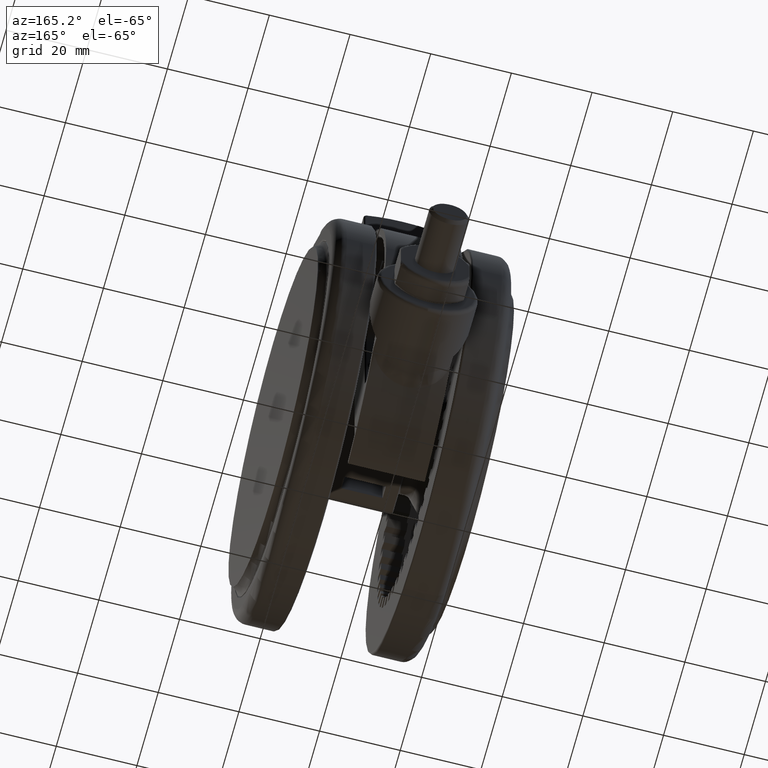
[diagram: clean part render]
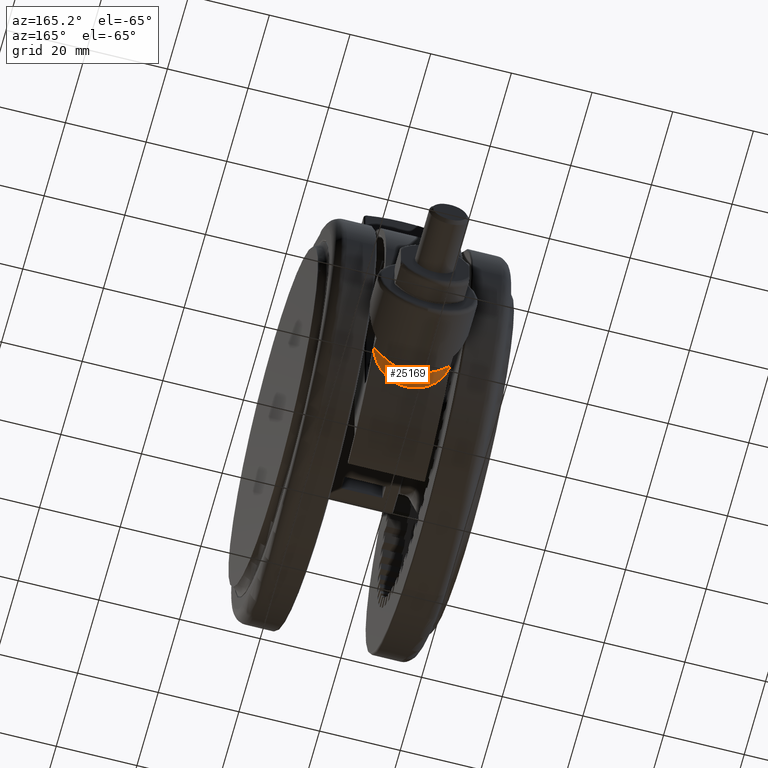
[diagram: same view with one face highlighted and labeled with its STEP entity id]
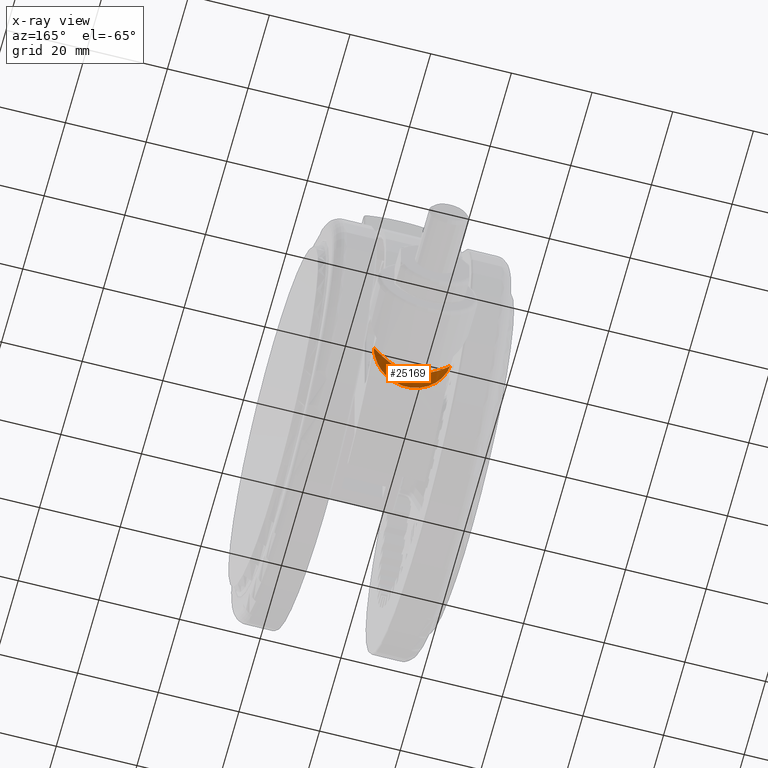
[diagram: x-ray of the same camera — body ghosted, the highlighted face saturated]
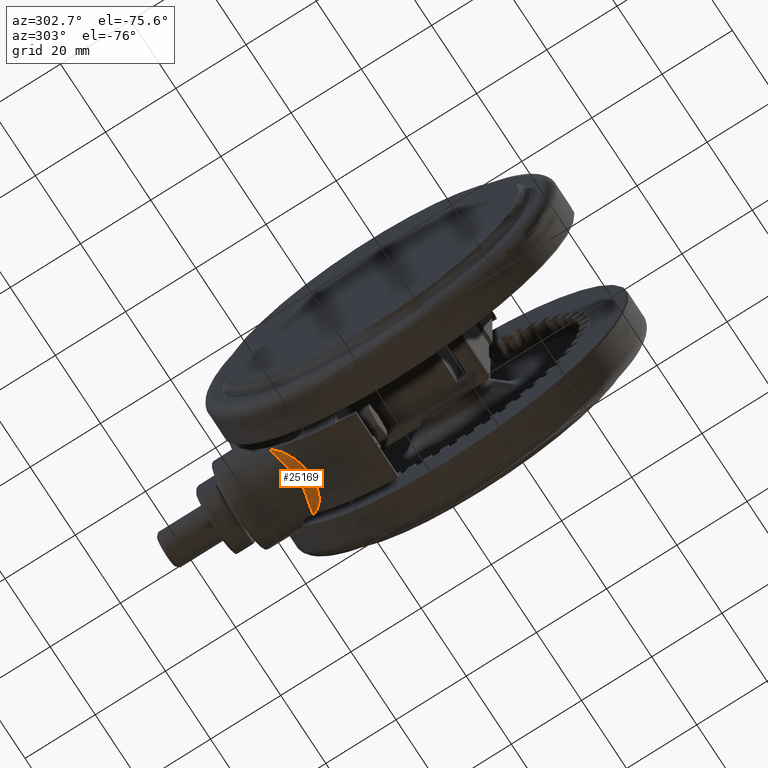
[diagram: same view with one face highlighted and labeled with its STEP entity id]
A machine part, auxiliary view. The second image highlights one B-rep face of the part: STEP entity #25169.
The next image is the same camera in x-ray: the body ghosted, the highlighted face saturated — about 0% of this face is hidden behind the body in this view.
A second angle (auxiliary view) of the same face is appended — the face is thin or edge-on in the first view.
In plain terms, the highlighted face is a freeform B-spline surface patch.
Its self-contained STEP definition (entity closure, byte-faithful):
#386 = CARTESIAN_POINT ( 'NONE',  ( -34.25130445588094100, -36.42593799122978000, -32.79308796653023700 ) ) ;
#545 = CARTESIAN_POINT ( 'NONE',  ( -36.36986337231447700, -34.31289385851399500, -30.28043021496837600 ) ) ;
#701 = CARTESIAN_POINT ( 'NONE',  ( -37.71843996565846900, -32.82255396730249000, -23.70754885830939800 ) ) ;
#1665 = CARTESIAN_POINT ( 'NONE',  ( -37.43618242095349300, -33.14478191162736900, -27.26398927128429500 ) ) ;
#1824 = CARTESIAN_POINT ( 'NONE',  ( -32.12403840463595400, -38.31509045503451500, -33.79999999999995500 ) ) ;
#1994 = CARTESIAN_POINT ( 'NONE',  ( -36.46856530793935700, -34.25636351355230100, -25.32458838649993600 ) ) ;
#2163 = CARTESIAN_POINT ( 'NONE',  ( -33.56664285895293900, -37.91273334638750500, -32.39834640829888500 ) ) ;
#2169 = CARTESIAN_POINT ( 'NONE',  ( -32.92166222278758900, -37.64634876964486000, -33.59697433640569400 ) ) ;
#2317 = CARTESIAN_POINT ( 'NONE',  ( -36.50043599079794600, -36.09292643029281300, -23.43755230665491500 ) ) ;
#2540 = B_SPLINE_CURVE_WITH_KNOTS ( 'NONE', 3,
 ( #29618, #44647, #10779, #37221, #14586, #41041, #18397, #44802, #22205, #48590, #25968, #3363, #29786, #7151, #33565, #10947, #37384, #14740, #41206, #18556, #44961, #22377, #48754, #26121, #3525, #29954, #7305, #33718, #11108, #37557, #14902, #41349, #18723, #45125, #22535, #48902, #26285, #3692, #30114, #7482, #33889, #11272, #37718, #15066 ),
 .UNSPECIFIED., .F., .F.,
 ( 4, 2, 2, 1, 1, 1, 1, 2, 2, 2, 1, 1, 1, 1, 2, 2, 1, 1, 1, 2, 2, 2, 2, 1, 1, 1, 1, 1, 2, 4 ),
 ( 0.0000000000000000000, 0.1249255703119594000, 0.1259015513300216200, 0.1268775323480838300, 0.1288294943842075400, 0.1327334184564546700, 0.1405412666009485700, 0.1561569628899360800, 0.1873883554679119100, 0.1893403175040351800, 0.1912922795401584300, 0.1951962036124047000, 0.2030040517568972300, 0.2186197480458824400, 0.2498511406238523000, 0.2518031026599752400, 0.2537550646960982600, 0.2576589887683443100, 0.2654668369128361200, 0.2810825332018202500, 0.3123139257797873900, 0.3747767109357216800, 0.3757526919537829700, 0.3767286729718442600, 0.3786806350079668900, 0.3825845590802121600, 0.3903924072247025900, 0.4060081035136832700, 0.4372394960916447000, 0.4997022812475671000 ),
 .UNSPECIFIED. ) ;
#2579 = EDGE_LOOP ( 'NONE', ( #26051, #10632, #22400 ) ) ;
#3216 = CARTESIAN_POINT ( 'NONE',  ( -36.15805373235433300, -36.41258714090651700, -27.20685049240347600 ) ) ;
#3292 = EDGE_CURVE ( 'NONE', #22430, #14341, #2540, .T. ) ;
#3363 = CARTESIAN_POINT ( 'NONE',  ( -34.59973128371528600, -37.45330876539701800, -17.67076234773432100 ) ) ;
#3376 = CARTESIAN_POINT ( 'NONE',  ( -35.43992505491073100, -36.96565723447674400, -29.33769371526798500 ) ) ;
#3400 = CARTESIAN_POINT ( 'NONE',  ( -37.16268891530106100, -33.45110870720961300, -20.26802367117061000 ) ) ;
#3525 = CARTESIAN_POINT ( 'NONE',  ( -35.48963411192150400, -36.92991092592433900, -19.37658311765648400 ) ) ;
#3546 = CARTESIAN_POINT ( 'NONE',  ( -34.66743719494450500, -37.42394761073261100, -30.81731373440900200 ) ) ;
#3563 = CARTESIAN_POINT ( 'NONE',  ( -35.00197835031620700, -35.70589945023508000, -16.45673910144243400 ) ) ;
#3692 = CARTESIAN_POINT ( 'NONE',  ( -36.27311717479182100, -36.30730546197649700, -21.92807313305850100 ) ) ;
#3711 = CARTESIAN_POINT ( 'NONE',  ( -32.12403840463594700, -38.31509045503450700, -33.79999999999995500 ) ) ;
#4172 = CARTESIAN_POINT ( 'NONE',  ( -34.31274652645726800, -36.36806705901759100, -32.74709739644021800 ) ) ;
#4339 = CARTESIAN_POINT ( 'NONE',  ( -36.89351901911390300, -33.74743635570672500, -29.10060216485619800 ) ) ;
#4500 = CARTESIAN_POINT ( 'NONE',  ( -37.67419706141804200, -32.87332735489306400, -23.03472540846654900 ) ) ;
#5258 = CARTESIAN_POINT ( 'NONE',  ( -36.50000001806535700, -36.09362725572350400, -24.29999658554314500 ) ) ;
#5433 = CARTESIAN_POINT ( 'NONE',  ( -37.68892080385659000, -32.85661925508011200, -25.52311673938108800 ) ) ;
#5601 = CARTESIAN_POINT ( 'NONE',  ( -33.31013225460080900, -37.29730577676193800, -32.69042207014332700 ) ) ;
#5765 = CARTESIAN_POINT ( 'NONE',  ( -36.50058598411994400, -34.22286650298862300, -23.28920437260285000 ) ) ;
#5922 = CARTESIAN_POINT ( 'NONE',  ( -34.62683780853768700, -37.44778576250880100, -30.89698155183882000 ) ) ;
#6083 = CARTESIAN_POINT ( 'NONE',  ( -36.05812889911138800, -36.50181562763256700, -20.89411594885230600 ) ) ;
#6836 = CARTESIAN_POINT ( 'NONE',  ( -36.50000022559466800, -36.09388832030650500, -25.12587872209097400 ) ) ;
#7009 = CARTESIAN_POINT ( 'NONE',  ( -36.03861309029507300, -36.51591747484231100, -27.67165940518934500 ) ) ;
#7068 = CARTESIAN_POINT ( 'NONE',  ( -37.35927654057920900, -33.23079222800549100, -21.04918661681228500 ) ) ;
#7151 = CARTESIAN_POINT ( 'NONE',  ( -34.86014351232513800, -37.31630280301596500, -18.11069175473656400 ) ) ;
#7168 = CARTESIAN_POINT ( 'NONE',  ( -35.42372825138241400, -36.97652211680768600, -29.37431014494724800 ) ) ;
#7185 = CARTESIAN_POINT ( 'NONE',  ( -36.70046858691684800, -33.95727959054358500, -19.03021689852306500 ) ) ;
#7305 = CARTESIAN_POINT ( 'NONE',  ( -35.61461062774503000, -36.84189128903796700, -19.67647250788782600 ) ) ;
#7323 = CARTESIAN_POINT ( 'NONE',  ( -34.39650944337410000, -37.55682584867588500, -31.24363407829115500 ) ) ;
#7345 = CARTESIAN_POINT ( 'NONE',  ( -34.63963226215736300, -36.05716634666075000, -16.12144361542922500 ) ) ;
#7482 = CARTESIAN_POINT ( 'NONE',  ( -36.37319197473188100, -36.21531074129342900, -22.50033337249992700 ) ) ;
#7973 = CARTESIAN_POINT ( 'NONE',  ( -34.99755747385133000, -35.71197130699533800, -32.16728140506390300 ) ) ;
#8124 = CARTESIAN_POINT ( 'NONE',  ( -37.10962394447583500, -33.50939683336971300, -28.47004904455606000 ) ) ;
#8272 = CARTESIAN_POINT ( 'NONE',  ( -37.63603152371256800, -32.91700591041863800, -22.66235478231617500 ) ) ;
#8608 = B_SPLINE_CURVE_WITH_KNOTS ( 'NONE', 3,
 ( #30429, #45444, #15383, #41847, #19199, #45601, #23013, #386, #26761, #4172, #30596, #7973, #34370, #11751, #38210, #15551, #42005, #19353, #45775, #23175, #545, #26923, #4339, #30761, #8124, #34541, #11915, #38371, #15717, #42165, #19509, #45932, #23345, #701, #27083, #4500, #30927, #8272, #34706, #12080, #38536, #15883, #42319, #7068, #22245, #48626, #26003, #3400, #29824, #7185, #33598, #10984, #37422, #14781, #41233, #18596, #44996, #22411, #48783, #26159, #3563, #29987, #7345, #33758, #11145, #37589, #14937, #41391, #18760, #45163 ),
 .UNSPECIFIED., .F., .F.,
 ( 4, 2, 1, 1, 1, 2, 2, 2, 2, 1, 1, 2, 2, 2, 2, 1, 1, 2, 2, 2, 2, 1, 2, 2, 2, 1, 1, 2, 2, 2, 2, 1, 1, 2, 2, 2, 2, 1, 1, 2, 2, 4 ),
 ( 0.0000000000000000000, 0.06250000000000023600, 0.09375000000000065200, 0.1093750000000008600, 0.1171875000000009600, 0.1210937500000014600, 0.1250000000000019400, 0.1874999999999977000, 0.2187499999999953600, 0.2343749999999939200, 0.2421874999999932600, 0.2460937499999930900, 0.2499999999999929500, 0.3124999999999885600, 0.3437499999999862300, 0.3593749999999849000, 0.3671874999999842300, 0.3710937499999842900, 0.3749999999999842900, 0.4999999999999832900, 0.5312499999999831200, 0.5468749999999831200, 0.5546874999999830100, 0.5624999999999829000, 0.5937499999999817900, 0.6093749999999814600, 0.6171874999999813500, 0.6210937499999812400, 0.6249999999999811300, 0.6874999999999821300, 0.7187499999999827900, 0.7343749999999832400, 0.7421874999999836800, 0.7460937499999839000, 0.7499999999999841200, 0.8124999999999886800, 0.8437499999999909000, 0.8593749999999920100, 0.8671874999999923400, 0.8710937499999926700, 0.8749999999999928900, 1.000000000000000000 ),
 .UNSPECIFIED. ) ;
#9065 = CARTESIAN_POINT ( 'NONE',  ( -33.66408607962479500, -36.98079492340351500, -33.24321432606851800 ) ) ;
#9236 = CARTESIAN_POINT ( 'NONE',  ( -37.72782762532069300, -32.81175130032340800, -23.09257323305550700 ) ) ;
#9395 = CARTESIAN_POINT ( 'NONE',  ( -34.32820012965621000, -36.36630205246963500, -31.37659994022887800 ) ) ;
#9556 = CARTESIAN_POINT ( 'NONE',  ( -35.92461712610769800, -34.81611768652255300, -20.39279422286490400 ) ) ;
#9740 = CARTESIAN_POINT ( 'NONE',  ( -35.27000021430969000, -37.08024586471056200, -29.72456952125632800 ) ) ;
#9895 = CARTESIAN_POINT ( 'NONE',  ( -35.09520465022619400, -37.19832824345706300, -18.47643764968922000 ) ) ;
#10056 = CARTESIAN_POINT ( 'NONE',  ( -32.12403840463594700, -38.31509045503450700, -33.79999999999995500 ) ) ;
#10632 = ORIENTED_EDGE ( 'NONE', *, *, #41609, .F. ) ;
#10779 = CARTESIAN_POINT ( 'NONE',  ( -33.51028970828846800, -37.93220448718817300, -16.12263061677519700 ) ) ;
#10796 = CARTESIAN_POINT ( 'NONE',  ( -35.89892968039090700, -36.62970362570057100, -28.12958128998823400 ) ) ;
#10947 = CARTESIAN_POINT ( 'NONE',  ( -34.87962305963709000, -37.30564295848562800, -18.14500274588189700 ) ) ;
#10957 = CARTESIAN_POINT ( 'NONE',  ( -35.36717482719479500, -37.01403410383044700, -29.50025706936827400 ) ) ;
#10984 = CARTESIAN_POINT ( 'NONE',  ( -36.42248523555787900, -34.25506623938138500, -18.45084457819068300 ) ) ;
#11108 = CARTESIAN_POINT ( 'NONE',  ( -35.80168147988528200, -36.70355044283289900, -20.17382168435242200 ) ) ;
#11132 = CARTESIAN_POINT ( 'NONE',  ( -34.09237753911946100, -37.68988539547421400, -31.67529203613121800 ) ) ;
#11145 = CARTESIAN_POINT ( 'NONE',  ( -34.42855383075186600, -36.25845492202547100, -15.94830099442340400 ) ) ;
#11272 = CARTESIAN_POINT ( 'NONE',  ( -36.47957591456979300, -36.11417289990463100, -23.46611478646570200 ) ) ;
#11751 = CARTESIAN_POINT ( 'NONE',  ( -35.58246277233998000, -35.12728478887276400, -31.48419502736400600 ) ) ;
#11915 = CARTESIAN_POINT ( 'NONE',  ( -37.23429283232786000, -33.37077632623414300, -28.04583883585288700 ) ) ;
#12080 = CARTESIAN_POINT ( 'NONE',  ( -37.58251479947082200, -32.97813730035134900, -22.22206409546963400 ) ) ;
#12457 = VERTEX_POINT ( 'NONE', #10056 ) ;
#12866 = CARTESIAN_POINT ( 'NONE',  ( -34.98648690088794700, -35.72284706792292000, -32.17832863730429700 ) ) ;
#13025 = CARTESIAN_POINT ( 'NONE',  ( -37.01941153230019000, -33.61160347066741100, -19.70481856507862200 ) ) ;
#13190 = CARTESIAN_POINT ( 'NONE',  ( -35.00522410131638700, -35.72389488592597900, -30.27522735907880500 ) ) ;
#13359 = CARTESIAN_POINT ( 'NONE',  ( -34.80540810995835700, -35.91864659482315900, -17.92145593502703700 ) ) ;
#13518 = CARTESIAN_POINT ( 'NONE',  ( -35.77125076591614300, -36.73149997768071300, -28.52743659507412800 ) ) ;
#13671 = CARTESIAN_POINT ( 'NONE',  ( -33.57425050388184900, -37.90511995949101700, -16.21052711192594100 ) ) ;
#14341 = VERTEX_POINT ( 'NONE', #5258 ) ;
#14586 = CARTESIAN_POINT ( 'NONE',  ( -34.12394766112302600, -37.67156191372762900, -16.96817061709058900 ) ) ;
#14602 = CARTESIAN_POINT ( 'NONE',  ( -35.88917128236350600, -36.63746066682394800, -28.15975867705981300 ) ) ;
#14740 = CARTESIAN_POINT ( 'NONE',  ( -34.94685685017782400, -37.26844631393579000, -18.26496723256317600 ) ) ;
#14758 = CARTESIAN_POINT ( 'NONE',  ( -35.11666137714098600, -37.17249885013258400, -30.02322095951419500 ) ) ;
#14781 = CARTESIAN_POINT ( 'NONE',  ( -36.22481259833247000, -34.46399058006397100, -18.08821197765285000 ) ) ;
#14902 = CARTESIAN_POINT ( 'NONE',  ( -36.06573623713463700, -36.49300108588585100, -21.00542363734206600 ) ) ;
#14919 = CARTESIAN_POINT ( 'NONE',  ( -34.03837811872038100, -37.71242924569535400, -31.74861788207863400 ) ) ;
#14937 = CARTESIAN_POINT ( 'NONE',  ( -34.36343508477920500, -36.32017561434445700, -15.89721210537177500 ) ) ;
#15066 = CARTESIAN_POINT ( 'NONE',  ( -36.50000001806535700, -36.09362725572350400, -24.29999658554314500 ) ) ;
#15383 = CARTESIAN_POINT ( 'NONE',  ( -32.91906115891493600, -37.63746394861338700, -33.55523827995644800 ) ) ;
#15551 = CARTESIAN_POINT ( 'NONE',  ( -35.88639470081733400, -34.81640338778236600, -31.06024271977734200 ) ) ;
#15717 = CARTESIAN_POINT ( 'NONE',  ( -37.27868678258919000, -33.32115974008785000, -27.87941658467040900 ) ) ;
#15883 = CARTESIAN_POINT ( 'NONE',  ( -37.45842529909910500, -33.11899733783679500, -21.50681829034573800 ) ) ;
#16682 = CARTESIAN_POINT ( 'NONE',  ( -35.85864279916599200, -34.84665416009491400, -31.12207594690954000 ) ) ;
#16846 = CARTESIAN_POINT ( 'NONE',  ( -35.60764669467684500, -35.10880213780451000, -17.06325723051129000 ) ) ;
#17019 = CARTESIAN_POINT ( 'NONE',  ( -35.57831253035872300, -35.16264297112702100, -29.06800148836890700 ) ) ;
#17189 = CARTESIAN_POINT ( 'NONE',  ( -33.31827743322988100, -37.29003772161654200, -15.91850003289538800 ) ) ;
#17346 = CARTESIAN_POINT ( 'NONE',  ( -36.14376018732229300, -36.42614527360846200, -27.29419569340585400 ) ) ;
#17519 = CARTESIAN_POINT ( 'NONE',  ( -32.12403840463594700, -38.31509045503450700, -14.79999999999995300 ) ) ;
#18251 = CARTESIAN_POINT ( 'NONE',  ( -36.23063194157887100, -36.34753037272069100, -26.88105403868257100 ) ) ;
#18397 = CARTESIAN_POINT ( 'NONE',  ( -34.14210928022161100, -37.66381044724838700, -16.99329829170409000 ) ) ;
#18414 = CARTESIAN_POINT ( 'NONE',  ( -35.85283871969480900, -36.66616226531722600, -28.27040462740729200 ) ) ;
#18556 = CARTESIAN_POINT ( 'NONE',  ( -35.21677137471778700, -37.11142425518021100, -18.77561857904351000 ) ) ;
#18572 = CARTESIAN_POINT ( 'NONE',  ( -34.84321218122181600, -37.32926548909281900, -30.51891792850196000 ) ) ;
#18596 = CARTESIAN_POINT ( 'NONE',  ( -36.14486403006539900, -34.54778351006460500, -17.95191337277101300 ) ) ;
#18723 = CARTESIAN_POINT ( 'NONE',  ( -36.23549645470843900, -36.34142888843267400, -21.74213810169099400 ) ) ;
#18743 = CARTESIAN_POINT ( 'NONE',  ( -33.85321846213000200, -37.78734117232765800, -31.99353385108453600 ) ) ;
#18760 = CARTESIAN_POINT ( 'NONE',  ( -32.93632475842446900, -37.63405544468293600, -15.00704004669549500 ) ) ;
#19199 = CARTESIAN_POINT ( 'NONE',  ( -33.73991292833539300, -36.90143508618617600, -33.14026829703659200 ) ) ;
#19353 = CARTESIAN_POINT ( 'NONE',  ( -36.04674763138156400, -34.65014434421257800, -30.81094728901973300 ) ) ;
#19509 = CARTESIAN_POINT ( 'NONE',  ( -37.58501714429105100, -32.97809629345243100, -26.68190859808843000 ) ) ;
#20487 = CARTESIAN_POINT ( 'NONE',  ( -36.58613579059674900, -34.08138319720666200, -29.84812007687396100 ) ) ;
#20644 = CARTESIAN_POINT ( 'NONE',  ( -33.67225760092103600, -36.97336288702951600, -15.36648014233135100 ) ) ;
#20808 = CARTESIAN_POINT ( 'NONE',  ( -36.03509612087079700, -34.70300020196339100, -27.74283297009095500 ) ) ;
#20977 = CARTESIAN_POINT ( 'NONE',  ( -32.12403840463597500, -38.31509045503447200, -14.79999999999995800 ) ) ;
#21147 = CARTESIAN_POINT ( 'NONE',  ( -36.38754879989574700, -36.20252279753516700, -26.02702512090588300 ) ) ;
#22052 = CARTESIAN_POINT ( 'NONE',  ( -36.22334612408018000, -36.35411392151534200, -26.91533111078388500 ) ) ;
#22205 = CARTESIAN_POINT ( 'NONE',  ( -34.21907164093681100, -37.63051104464103200, -17.10103321055018100 ) ) ;
#22221 = CARTESIAN_POINT ( 'NONE',  ( -35.74607930681553800, -36.74824502354478300, -28.57682106220142200 ) ) ;
#22245 = CARTESIAN_POINT ( 'NONE',  ( -37.33401568358108600, -33.25915570764770000, -20.94450826853733700 ) ) ;
#22377 = CARTESIAN_POINT ( 'NONE',  ( -35.45137718920580700, -36.95633427270735200, -19.28839850063547300 ) ) ;
#22395 = CARTESIAN_POINT ( 'NONE',  ( -34.82507840061735700, -37.33933783961024500, -30.55042673891864500 ) ) ;
#22400 = ORIENTED_EDGE ( 'NONE', *, *, #3292, .F. ) ;
#22411 = CARTESIAN_POINT ( 'NONE',  ( -35.86658510468876000, -34.83840316452166500, -17.49143007598861700 ) ) ;
#22430 = VERTEX_POINT ( 'NONE', #37388 ) ;
#22510 = EDGE_CURVE ( 'NONE', #12457, #22430, #8608, .T. ) ;
#22535 = CARTESIAN_POINT ( 'NONE',  ( -36.24000156349666200, -36.33735371592871400, -21.76378023264612000 ) ) ;
#22554 = CARTESIAN_POINT ( 'NONE',  ( -33.34418376838182500, -37.97134025071851200, -32.60638533128112500 ) ) ;
#23013 = CARTESIAN_POINT ( 'NONE',  ( -34.18871064049903900, -36.48476154389398800, -32.83915778883793000 ) ) ;
#23175 = CARTESIAN_POINT ( 'NONE',  ( -36.09326724600050800, -34.60168511526687500, -30.73579949498943300 ) ) ;
#23345 = CARTESIAN_POINT ( 'NONE',  ( -37.72742056007386700, -32.81221933876857100, -24.00770164411783400 ) ) ;
#24273 = CARTESIAN_POINT ( 'NONE',  ( -37.15574321912489400, -33.45885634714225200, -28.36081711690209800 ) ) ;
#24440 = CARTESIAN_POINT ( 'NONE',  ( -32.12403840463594700, -38.31509045503450700, -14.79999999999995300 ) ) ;
#24619 = CARTESIAN_POINT ( 'NONE',  ( -36.35010992757386800, -34.37936126329024900, -26.31268461614702800 ) ) ;
#24755 = CARTESIAN_POINT ( 'NONE',  ( -32.91740461730368800, -38.12528708408950700, -33.12154341256276500 ) ) ;
#24921 = CARTESIAN_POINT ( 'NONE',  ( -36.49977962614234200, -36.09398298328590500, -24.74066800862459200 ) ) ;
#25169 = ADVANCED_FACE ( 'NONE', ( #41819 ), #34946, .T. ) ;
#25826 = CARTESIAN_POINT ( 'NONE',  ( -36.19724345811074100, -36.37761353568409800, -27.03524008813427700 ) ) ;
#25968 = CARTESIAN_POINT ( 'NONE',  ( -34.41477385414428600, -37.54181864110322700, -17.38658844337106400 ) ) ;
#25984 = CARTESIAN_POINT ( 'NONE',  ( -35.54647348892726200, -36.89377144861592200, -29.09491575117739600 ) ) ;
#26003 = CARTESIAN_POINT ( 'NONE',  ( -37.30790920989749500, -33.28843755603158200, -20.83889342433607100 ) ) ;
#26051 = ORIENTED_EDGE ( 'NONE', *, *, #22510, .F. ) ;
#26121 = CARTESIAN_POINT ( 'NONE',  ( -35.47091343021338600, -36.94286382234802300, -19.33327133735178900 ) ) ;
#26137 = CARTESIAN_POINT ( 'NONE',  ( -34.76120495770850700, -37.37426196706833500, -30.66011556394994700 ) ) ;
#26159 = CARTESIAN_POINT ( 'NONE',  ( -35.15548171894425900, -35.55468087673803300, -16.61600918983972600 ) ) ;
#26285 = CARTESIAN_POINT ( 'NONE',  ( -36.25404827327366100, -36.32462915271486300, -21.83227477245025800 ) ) ;
#26297 = CARTESIAN_POINT ( 'NONE',  ( -32.49383438791685600, -38.22662119195278800, -33.48376455052056100 ) ) ;
#26761 = CARTESIAN_POINT ( 'NONE',  ( -34.29288990464157600, -36.38679042535216000, -32.76208389114204800 ) ) ;
#26923 = CARTESIAN_POINT ( 'NONE',  ( -36.59771754745315100, -34.06892858752121400, -29.82475463302112600 ) ) ;
#26990 = B_SPLINE_CURVE_WITH_KNOTS ( 'NONE', 3,
 ( #37079, #6836, #40884, #18251, #44656, #22052, #48429, #25826, #3216, #29636, #7009, #33420, #10796, #37234, #14602, #41062, #18414, #44822, #22221, #48606, #25984, #3376, #29804, #7168, #33585, #10957, #37403, #14758, #41219, #18572, #44980, #22395, #48767, #26137, #3546, #29972, #7323, #33734, #11132, #37571, #14919, #41365, #18743, #45143, #22554, #48920, #26297, #3711 ),
 .UNSPECIFIED., .F., .F.,
 ( 4, 2, 2, 1, 1, 1, 2, 2, 2, 1, 1, 1, 2, 2, 2, 1, 1, 1, 1, 2, 2, 1, 1, 1, 2, 2, 2, 1, 1, 1, 2, 4 ),
 ( 0.4997022812475671000, 0.6247767109356945300, 0.6267309988995718500, 0.6286852868634491600, 0.6325938627912035500, 0.6404110146467125700, 0.6560453183577308300, 0.6873139257797671300, 0.6892682137436443300, 0.6912225017075214200, 0.6951310776352749300, 0.7029482294907812800, 0.7185825332017937700, 0.7498511406238186300, 0.7518054285876952800, 0.7537597165515719200, 0.7576682924793247700, 0.7654854443348302300, 0.7811197480458407200, 0.8123883554678620300, 0.8143426434317381200, 0.8162969313956143200, 0.8202055073233669400, 0.8280226591788726300, 0.8436569628898842300, 0.8749255703119078700, 0.8788341462396603900, 0.8827427221674129000, 0.8905598740229184700, 0.9061941777339300700, 0.9374627851559534900, 1.000000000000000000 ),
 .UNSPECIFIED. ) ;
#27083 = CARTESIAN_POINT ( 'NONE',  ( -37.69123459779096000, -32.85378250809415600, -23.25875986144025400 ) ) ;
#28058 = CARTESIAN_POINT ( 'NONE',  ( -37.54350662722014000, -33.02267842505440900, -26.69469926342359000 ) ) ;
#28228 = CARTESIAN_POINT ( 'NONE',  ( -32.74179714139454900, -37.79715078185985500, -33.27171624131873500 ) ) ;
#28386 = CARTESIAN_POINT ( 'NONE',  ( -36.49970380647274500, -34.22380826817480000, -24.81647473901170600 ) ) ;
#28547 = CARTESIAN_POINT ( 'NONE',  ( -34.38176332874784400, -37.56721705322206600, -31.27728154231693800 ) ) ;
#28710 = CARTESIAN_POINT ( 'NONE',  ( -36.41236935605299200, -36.18148907032135500, -22.58780676138366800 ) ) ;
#29618 = CARTESIAN_POINT ( 'NONE',  ( -32.12403840463594700, -38.31509045503450700, -14.79999999999995300 ) ) ;
#29636 = CARTESIAN_POINT ( 'NONE',  ( -36.12029095828877000, -36.44565641055474700, -27.35943134536955100 ) ) ;
#29786 = CARTESIAN_POINT ( 'NONE',  ( -34.72578075728979700, -37.38940461894167600, -17.87562727408301900 ) ) ;
#29804 = CARTESIAN_POINT ( 'NONE',  ( -35.43490940000711500, -36.96902877866328700, -29.34906304398907700 ) ) ;
#29824 = CARTESIAN_POINT ( 'NONE',  ( -36.99640792676802200, -33.63555748422570000, -19.75708853571503800 ) ) ;
#29954 = CARTESIAN_POINT ( 'NONE',  ( -35.53244071496540400, -36.90006616351854500, -19.47717980003576000 ) ) ;
#29972 = CARTESIAN_POINT ( 'NONE',  ( -34.58033566511625200, -37.46771572551011800, -30.95727894250436000 ) ) ;
#29987 = CARTESIAN_POINT ( 'NONE',  ( -34.76202998411207500, -35.93902763543094600, -16.23101237620689500 ) ) ;
#30114 = CARTESIAN_POINT ( 'NONE',  ( -36.30919287769805900, -36.27436485532080500, -22.11932611986386400 ) ) ;
#30429 = CARTESIAN_POINT ( 'NONE',  ( -32.12403840463594700, -38.31509045503450700, -33.79999999999995500 ) ) ;
#30596 = CARTESIAN_POINT ( 'NONE',  ( -34.67847468081328100, -36.02259843663026100, -32.46738158160381700 ) ) ;
#30761 = CARTESIAN_POINT ( 'NONE',  ( -36.98444995232170400, -33.64767337381376000, -28.85244482626054500 ) ) ;
#30927 = CARTESIAN_POINT ( 'NONE',  ( -37.65198884829154500, -32.89875199348075800, -22.81123102368416200 ) ) ;
#31873 = CARTESIAN_POINT ( 'NONE',  ( -37.72699225111949100, -32.81271180295855300, -24.91693521020514600 ) ) ;
#32030 = CARTESIAN_POINT ( 'NONE',  ( -34.08448326326870200, -36.59242965720605400, -31.71590621923155200 ) ) ;
#32194 = CARTESIAN_POINT ( 'NONE',  ( -36.37859898185637800, -34.35105924785143800, -22.29058610459856400 ) ) ;
#32351 = CARTESIAN_POINT ( 'NONE',  ( -35.07094729503164400, -37.20438601109006500, -30.12099419299659800 ) ) ;
#32358 = CARTESIAN_POINT ( 'NONE',  ( -32.12403840463594700, -38.31509045503450700, -33.79999999999995500 ) ) ;
#32512 = CARTESIAN_POINT ( 'NONE',  ( -35.79902333183734700, -36.72019316501315700, -20.08093694132032100 ) ) ;
#33420 = CARTESIAN_POINT ( 'NONE',  ( -35.97596419938926700, -36.56825488435544700, -27.88924821474963200 ) ) ;
#33565 = CARTESIAN_POINT ( 'NONE',  ( -34.86605375876006700, -37.31307439966754900, -18.12107899146424800 ) ) ;
#33585 = CARTESIAN_POINT ( 'NONE',  ( -35.40689378703369500, -36.98776650753728000, -29.41215300997767200 ) ) ;
#33598 = CARTESIAN_POINT ( 'NONE',  ( -36.59406196103132200, -34.07202084390574000, -18.79451486379096900 ) ) ;
#33718 = CARTESIAN_POINT ( 'NONE',  ( -35.67933347742983600, -36.79462365433645500, -19.84388870939200100 ) ) ;
#33734 = CARTESIAN_POINT ( 'NONE',  ( -34.26113102082652500, -37.61833112226747000, -31.44312808477307900 ) ) ;
#33758 = CARTESIAN_POINT ( 'NONE',  ( -34.49252833873583100, -36.19767272266231100, -15.99937894774211600 ) ) ;
#33889 = CARTESIAN_POINT ( 'NONE',  ( -36.41440691823745400, -36.17639652804264500, -22.82392555823444600 ) ) ;
#34370 = CARTESIAN_POINT ( 'NONE',  ( -35.44067592295424200, -35.27041211930942000, -31.66187379050731100 ) ) ;
#34541 = CARTESIAN_POINT ( 'NONE',  ( -37.16940470234045800, -33.44309982805508200, -28.27631121025104500 ) ) ;
#34706 = CARTESIAN_POINT ( 'NONE',  ( -37.62730254866878700, -32.92698418948012300, -22.58655718073090700 ) ) ;
#34946 =( BOUNDED_SURFACE ( )  B_SPLINE_SURFACE ( 2, 3, ( 
 ( #32358, #2169, #9065, #35497, #12866, #39320, #16682, #43110, #20487, #46873, #24273, #1665, #28058, #5433, #31873, #9236, #35658, #13025, #39485, #16846, #43277, #20644, #47047, #24440 ),
 ( #1824, #28228, #5601, #32030, #9395, #35831, #13190, #39640, #17019, #43447, #20808, #47203, #24619, #1994, #28386, #5765, #32194, #9556, #35994, #13359, #39802, #17189, #43613, #20977 ),
 ( #47359, #24755, #2163, #28547, #5922, #32351, #9740, #36142, #13518, #39985, #17346, #43765, #21147, #47531, #24921, #2317, #28710, #6083, #32512, #9895, #36316, #13671, #40137, #17519 ) ),
 .UNSPECIFIED., .F., .F., .F. ) 
 B_SPLINE_SURFACE_WITH_KNOTS ( ( 3, 3 ),
 ( 4, 2, 2, 2, 2, 2, 2, 2, 2, 2, 2, 4 ),
 ( 0.0000000000000000000, 1.000000000000000000 ),
 ( 0.0000000000000000000, 0.002910886117482075000, 0.004366329176223114600, 0.005821772234964149900, 0.007277215293705189600, 0.008732658352446231000, 0.01018810141118726100, 0.01164354446992830000, 0.01455443058741037900, 0.01746531670489245200, 0.02037620282237455000, 0.02328708893985660000 ),
 .UNSPECIFIED. ) 
 GEOMETRIC_REPRESENTATION_ITEM ( )  RATIONAL_B_SPLINE_SURFACE ( (
 ( 1.000000000000000000, 1.000000000000000000, 1.000000000000000000, 1.000000000000000000, 1.000000000000000000, 1.000000000000000000, 1.000000000000000000, 1.000000000000000000, 1.000000000000000000, 1.000000000000000000, 1.000000000000000000, 1.000000000000000000, 1.000000000000000000, 1.000000000000000000, 1.000000000000000000, 1.000000000000000000, 1.000000000000000000, 1.000000000000000000, 1.000000000000000000, 1.000000000000000000, 1.000000000000000000, 1.000000000000000000, 1.000000000000000000, 1.000000000000000000),
 ( 0.8418916422966850100, 0.8570734120097879300, 0.8703353177238060100, 0.8876393394012910300, 0.8929770659335000100, 0.9028314442064669900, 0.9073492672211309600, 0.9154090577498900100, 0.9189779975324250400, 0.9252072574555370000, 0.9278809530474219100, 0.9322041489064939500, 0.9338395159534849100, 0.9360492422162759500, 0.9366233347750310100, 0.9366383695769069400, 0.9344183675434870600, 0.9257898320590549600, 0.9195433855213940300, 0.9033177914616229400, 0.8935623208423110200, 0.8704889904661880000, 0.8570972105120691100, 0.8418916422966860000),
 ( 1.000000000000000000, 1.000000000000000000, 1.000000000000000000, 1.000000000000000000, 1.000000000000000000, 1.000000000000000000, 1.000000000000000000, 1.000000000000000000, 1.000000000000000000, 1.000000000000000000, 1.000000000000000000, 1.000000000000000000, 1.000000000000000000, 1.000000000000000000, 1.000000000000000000, 1.000000000000000000, 1.000000000000000000, 1.000000000000000000, 1.000000000000000000, 1.000000000000000000, 1.000000000000000000, 1.000000000000000000, 1.000000000000000000, 1.000000000000000000) ) ) 
 REPRESENTATION_ITEM ( '' )  SURFACE ( )  );
#35497 = CARTESIAN_POINT ( 'NONE',  ( -34.66934688114009300, -36.03122060132000800, -32.47435812443460900 ) ) ;
#35658 = CARTESIAN_POINT ( 'NONE',  ( -37.57932214695419000, -32.98440942388726400, -21.90580713616229900 ) ) ;
#35831 = CARTESIAN_POINT ( 'NONE',  ( -34.78815351317813100, -35.93242280020221800, -30.65684377936051100 ) ) ;
#35994 = CARTESIAN_POINT ( 'NONE',  ( -35.59947566346577500, -35.14474354581507500, -19.52222255057856200 ) ) ;
#36142 = CARTESIAN_POINT ( 'NONE',  ( -35.61951871395609000, -36.84454481585530800, -28.92878430881240000 ) ) ;
#36316 = CARTESIAN_POINT ( 'NONE',  ( -34.66081032718314200, -37.44346102358684900, -17.70811351085348300 ) ) ;
#37079 = CARTESIAN_POINT ( 'NONE',  ( -36.50000001806535700, -36.09362725572350400, -24.29999658554314500 ) ) ;
#37221 = CARTESIAN_POINT ( 'NONE',  ( -34.12118266670740500, -37.67273934764465100, -16.96435235112907600 ) ) ;
#37234 = CARTESIAN_POINT ( 'NONE',  ( -35.89621499840833300, -36.63186333826103400, -28.13799420767673400 ) ) ;
#37384 = CARTESIAN_POINT ( 'NONE',  ( -34.89991779094594900, -37.29449198007012700, -18.18092196628458300 ) ) ;
#37388 = CARTESIAN_POINT ( 'NONE',  ( -32.12403840463594700, -38.31509045503450700, -14.79999999999995300 ) ) ;
#37403 = CARTESIAN_POINT ( 'NONE',  ( -35.28598797303508400, -37.06669203478010400, -29.67566974753881900 ) ) ;
#37422 = CARTESIAN_POINT ( 'NONE',  ( -36.33370454684031600, -34.34932155627552000, -18.28148012701499400 ) ) ;
#37557 = CARTESIAN_POINT ( 'NONE',  ( -35.87378657353621500, -36.64745104569661300, -20.38723262964901700 ) ) ;
#37571 = CARTESIAN_POINT ( 'NONE',  ( -34.07486595088778400, -37.69724034839830300, -31.69919047459031300 ) ) ;
#37589 = CARTESIAN_POINT ( 'NONE',  ( -34.38569670367482400, -36.29910101383248400, -15.91452357569759700 ) ) ;
#37718 = CARTESIAN_POINT ( 'NONE',  ( -36.49999988733622300, -36.09349687896403200, -23.88754698582878100 ) ) ;
#38210 = CARTESIAN_POINT ( 'NONE',  ( -35.78652116577914200, -34.91896835886084500, -31.20386254521234200 ) ) ;
#38371 = CARTESIAN_POINT ( 'NONE',  ( -37.26106686952010000, -33.34086187254301600, -27.94611248231604300 ) ) ;
#38536 = CARTESIAN_POINT ( 'NONE',  ( -37.53810011566732600, -33.02873721342446300, -21.93390471861028200 ) ) ;
#39320 = CARTESIAN_POINT ( 'NONE',  ( -35.58109633653769100, -35.13063693977436200, -31.50272081236375900 ) ) ;
#39485 = CARTESIAN_POINT ( 'NONE',  ( -36.61704633648114500, -34.05472666571306200, -18.73239537319382800 ) ) ;
#39640 = CARTESIAN_POINT ( 'NONE',  ( -35.39922863813371400, -35.34000757902970900, -29.48206776920309500 ) ) ;
#39802 = CARTESIAN_POINT ( 'NONE',  ( -34.34436447098503500, -36.35558612683168900, -17.21275494056103400 ) ) ;
#39985 = CARTESIAN_POINT ( 'NONE',  ( -36.03308066160880000, -36.52274414425385600, -27.71152964968352400 ) ) ;
#40137 = CARTESIAN_POINT ( 'NONE',  ( -32.91846472706788500, -38.12475651041457100, -15.47936315295688200 ) ) ;
#40884 = CARTESIAN_POINT ( 'NONE',  ( -36.41831179275369100, -36.17765676096684000, -25.98673341966720000 ) ) ;
#41041 = CARTESIAN_POINT ( 'NONE',  ( -34.13120689593764500, -37.66846706646716600, -16.97820478455195200 ) ) ;
#41062 = CARTESIAN_POINT ( 'NONE',  ( -35.87849894942952700, -36.64592584892754700, -28.19258229287619600 ) ) ;
#41206 = CARTESIAN_POINT ( 'NONE',  ( -35.03906758269813800, -37.21624811567432500, -18.43398178494854600 ) ) ;
#41219 = CARTESIAN_POINT ( 'NONE',  ( -34.95975542745934900, -37.26403204064020300, -30.31519382323207500 ) ) ;
#41233 = CARTESIAN_POINT ( 'NONE',  ( -36.17699705539665400, -34.51413370293438000, -18.00630928014252100 ) ) ;
#41349 = CARTESIAN_POINT ( 'NONE',  ( -36.16130169531840000, -36.40849875480955000, -21.38801587333927400 ) ) ;
#41365 = CARTESIAN_POINT ( 'NONE',  ( -33.98338190599859100, -37.73511266649386900, -31.82254527877637100 ) ) ;
#41391 = CARTESIAN_POINT ( 'NONE',  ( -33.67350113738653800, -36.97218770089946100, -15.36742604076278300 ) ) ;
#41609 = EDGE_CURVE ( 'NONE', #14341, #12457, #26990, .T. ) ;
#41819 = FACE_OUTER_BOUND ( 'NONE', #2579, .T. ) ;
#41847 = CARTESIAN_POINT ( 'NONE',  ( -33.47112494297424900, -37.14491371734087000, -33.28789916120126700 ) ) ;
#42005 = CARTESIAN_POINT ( 'NONE',  ( -35.99919553598415000, -34.69959086387142800, -30.88664248414129400 ) ) ;
#42165 = CARTESIAN_POINT ( 'NONE',  ( -37.28692987240627600, -33.31193546800766100, -27.84773115021833700 ) ) ;
#42319 = CARTESIAN_POINT ( 'NONE',  ( -37.41532364989151900, -33.16771651198610000, -21.29456323546957800 ) ) ;
#43110 = CARTESIAN_POINT ( 'NONE',  ( -36.36043241357769800, -34.32274062846800400, -30.29595018659624000 ) ) ;
#43277 = CARTESIAN_POINT ( 'NONE',  ( -35.01279839000769600, -35.70650422569296700, -16.39583582207226100 ) ) ;
#43447 = CARTESIAN_POINT ( 'NONE',  ( -35.89556917486332600, -34.84482114248709900, -28.20029443364064600 ) ) ;
#43613 = CARTESIAN_POINT ( 'NONE',  ( -32.74271661648783300, -37.79637987801132200, -15.32907005830881900 ) ) ;
#43765 = CARTESIAN_POINT ( 'NONE',  ( -36.32129708903959700, -36.26548179499545900, -26.44982729102331800 ) ) ;
#44647 = CARTESIAN_POINT ( 'NONE',  ( -32.83125385933055200, -38.14565107042782400, -15.40478373834636500 ) ) ;
#44656 = CARTESIAN_POINT ( 'NONE',  ( -36.22840151674786600, -36.34954712188442700, -26.89159094636841000 ) ) ;
#44802 = CARTESIAN_POINT ( 'NONE',  ( -34.16764174743406800, -37.65284456410802200, -17.02881292186038900 ) ) ;
#44822 = CARTESIAN_POINT ( 'NONE',  ( -35.79839796564205300, -36.70857239735504900, -28.43094758884531000 ) ) ;
#44961 = CARTESIAN_POINT ( 'NONE',  ( -35.35741100250524500, -37.02084243652043200, -19.07432975577344400 ) ) ;
#44980 = CARTESIAN_POINT ( 'NONE',  ( -34.83757942183307700, -37.33240383776647800, -30.52872611964611900 ) ) ;
#44996 = CARTESIAN_POINT ( 'NONE',  ( -36.12770660375957700, -34.56572447908613600, -17.92322606596905700 ) ) ;
#45125 = CARTESIAN_POINT ( 'NONE',  ( -36.23715382502900400, -36.33993012263067600, -21.75007544321501400 ) ) ;
#45143 = CARTESIAN_POINT ( 'NONE',  ( -33.58563525856371300, -37.88900027987750700, -32.32937614981552300 ) ) ;
#45163 = CARTESIAN_POINT ( 'NONE',  ( -32.12403840463594700, -38.31509045503450700, -14.79999999999995300 ) ) ;
#45444 = CARTESIAN_POINT ( 'NONE',  ( -32.53170146423691700, -37.97329865375606100, -33.69623421302765100 ) ) ;
#45601 = CARTESIAN_POINT ( 'NONE',  ( -34.04114394600856700, -36.62272535003232600, -32.94360000546706900 ) ) ;
#45775 = CARTESIAN_POINT ( 'NONE',  ( -36.07827384832725000, -34.61731754484142000, -30.76019602690876200 ) ) ;
#45932 = CARTESIAN_POINT ( 'NONE',  ( -37.72667130563736000, -32.81308082199323900, -25.51326617930497100 ) ) ;
#46873 = CARTESIAN_POINT ( 'NONE',  ( -36.98341913371294300, -33.64985470849671100, -28.88246211112777900 ) ) ;
#47047 = CARTESIAN_POINT ( 'NONE',  ( -32.92274747709339500, -37.64543887355476000, -15.00357939399875200 ) ) ;
#47203 = CARTESIAN_POINT ( 'NONE',  ( -36.26257030158092200, -34.47001485367799500, -26.79698749842314200 ) ) ;
#47359 = CARTESIAN_POINT ( 'NONE',  ( -32.12403840463594700, -38.31509045503450700, -33.79999999999995500 ) ) ;
#47531 = CARTESIAN_POINT ( 'NONE',  ( -36.47679525740324600, -36.11673357198966300, -25.17381985722358100 ) ) ;
#48429 = CARTESIAN_POINT ( 'NONE',  ( -36.21568386764099800, -36.36102853541471800, -26.95105854243980700 ) ) ;
#48590 = CARTESIAN_POINT ( 'NONE',  ( -34.32331525845513900, -37.58423699296214700, -17.25027979270060300 ) ) ;
#48606 = CARTESIAN_POINT ( 'NONE',  ( -35.63303338304331900, -36.83201838851491800, -28.87917505991654500 ) ) ;
#48626 = CARTESIAN_POINT ( 'NONE',  ( -37.31689872523924800, -33.27835986009030500, -20.87483004962538400 ) ) ;
#48754 = CARTESIAN_POINT ( 'NONE',  ( -35.45834896827553700, -36.95153514973358700, -19.30435314968724500 ) ) ;
#48767 = CARTESIAN_POINT ( 'NONE',  ( -34.80619527040399000, -37.34976343446357600, -30.58309302517570700 ) ) ;
#48783 = CARTESIAN_POINT ( 'NONE',  ( -35.59718382081288700, -35.11429071728594700, -17.12017626975241700 ) ) ;
#48902 = CARTESIAN_POINT ( 'NONE',  ( -36.24425457442741600, -36.33350434493667100, -21.78433459507728300 ) ) ;
#48920 = CARTESIAN_POINT ( 'NONE',  ( -32.84611438624150300, -38.12962498298858800, -33.14508284537703300 ) ) ;